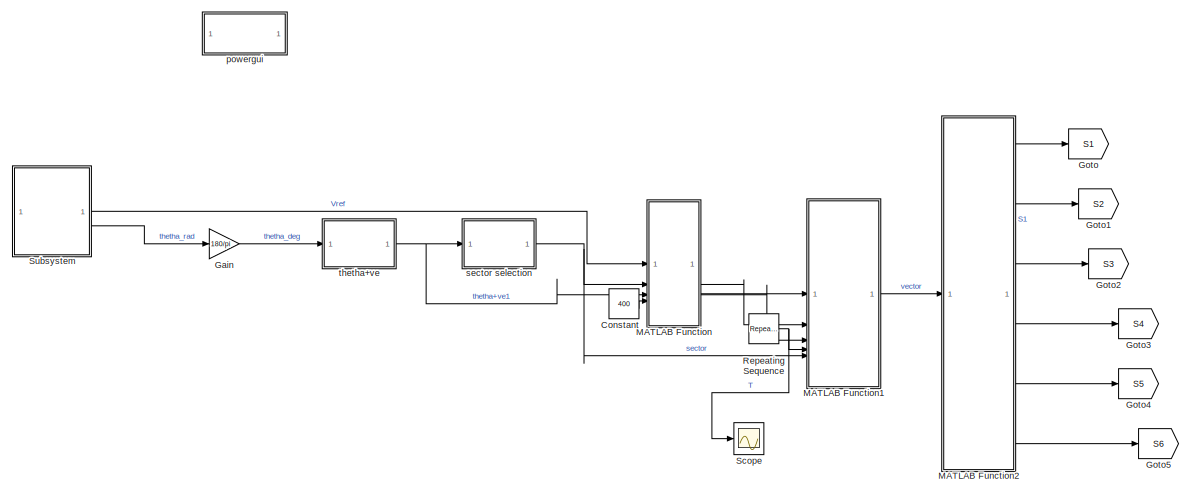
[diagram: root canvas - part 1/2, middle left region]
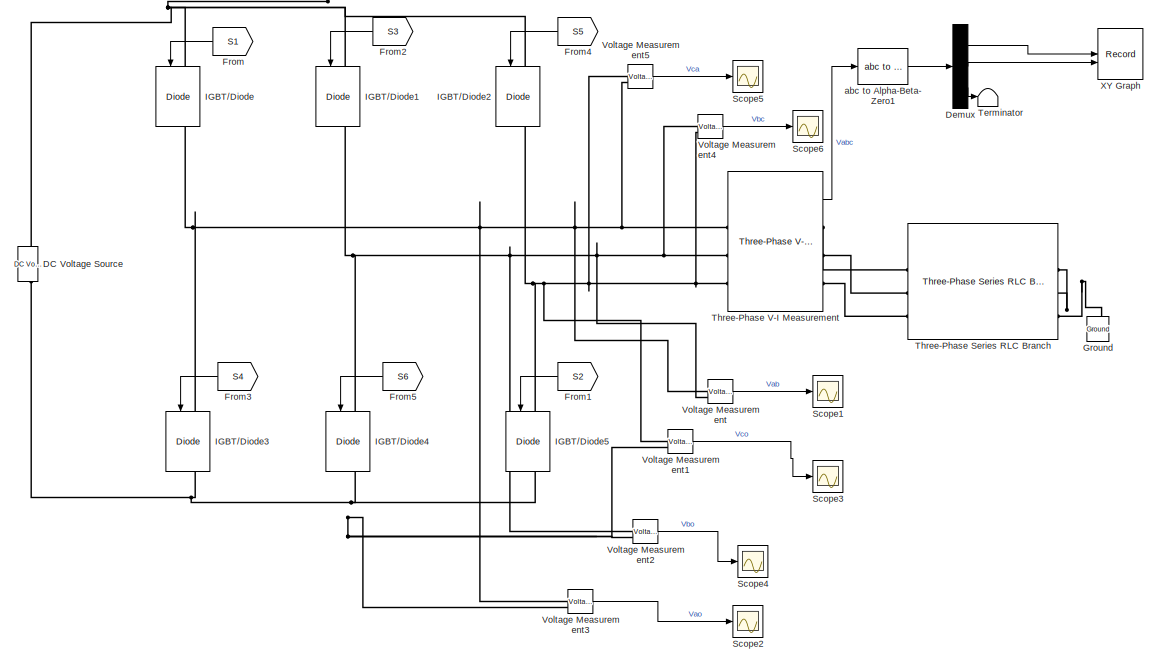
[diagram: root canvas - part 2/2, right side, full height]
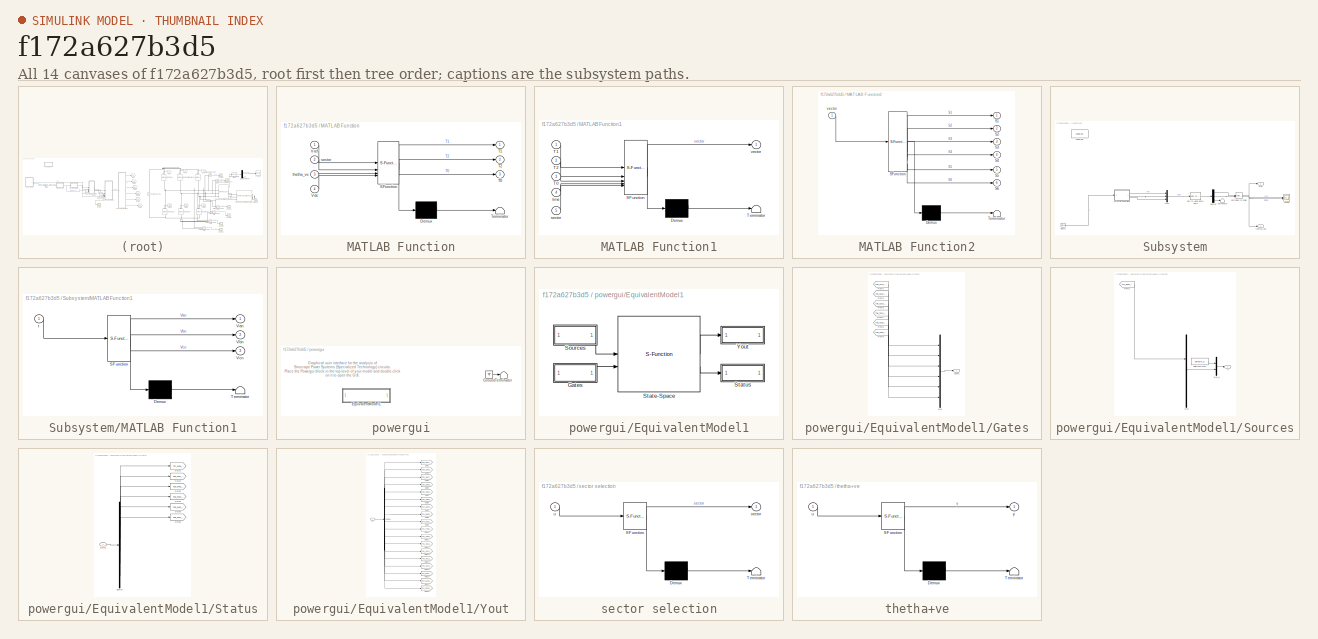
[diagram: thumbnail index - all 14 canvases of the model, root first then tree order]
MODEL slx_f172a627b3d5
KIND model
CONFIG AbsTol = auto
CONFIG EnableMultiTasking = off
CONFIG FixedStep = auto
CONFIG InitFcn = Ts=1/1550;
CONFIG MaxStep = 1e-6
CONFIG MinStep = auto
CONFIG RelTol = 1e-3
CONFIG SampleTimeConstraint = Unconstrained
CONFIG SolverName = VariableStepAuto
CONFIG StartTime = 0.0
CONFIG StopTime = 1
BLOCK [Constant] Constant
  Value = 400
BLOCK [Reference] DC Voltage Source  REF=spsDCVoltageSourceLib/DC Voltage Source
  LibrarySourceBlock = sps_lib/Sources/DC Voltage Source
  SourceBlock = spsDCVoltageSourceLib/DC Voltage Source
  SourceType = DC Voltage Source
BLOCK [Demux] Demux
  Outputs = 3
BLOCK [From] From
  GotoTag = S1
  NameLocation = top
BLOCK [From] From1
  GotoTag = S2
BLOCK [From] From2
  GotoTag = S3
BLOCK [From] From3
  GotoTag = S4
BLOCK [From] From4
  GotoTag = S5
BLOCK [From] From5
  GotoTag = S6
BLOCK [Gain] Gain
  Gain = 180/pi
BLOCK [Goto] Goto
  GotoTag = S1
BLOCK [Goto] Goto1
  GotoTag = S2
BLOCK [Goto] Goto2
  GotoTag = S3
BLOCK [Goto] Goto3
  GotoTag = S4
BLOCK [Goto] Goto4
  GotoTag = S5
BLOCK [Goto] Goto5
  GotoTag = S6
BLOCK [Reference] Ground  REF=spsGroundLib/Ground
  LibrarySourceBlock = sps_lib/Utilities/Ground
  NameLocation = right
  SourceBlock = spsGroundLib/Ground
  SourceType = Ground
BLOCK [Reference] IGBT//Diode  REF=spsIGBTDiodeLib/IGBT//Diode
  LibrarySourceBlock = sps_lib/Power Electronics/IGBT//Diode
  NameLocation = left
  SourceBlock = spsIGBTDiodeLib/IGBT//Diode
  SourceType = IGBT/Diode
BLOCK [Reference] IGBT//Diode1  REF=spsIGBTDiodeLib/IGBT//Diode
  LibrarySourceBlock = sps_lib/Power Electronics/IGBT//Diode
  NameLocation = left
  SourceBlock = spsIGBTDiodeLib/IGBT//Diode
  SourceType = IGBT/Diode
BLOCK [Reference] IGBT//Diode2  REF=spsIGBTDiodeLib/IGBT//Diode
  LibrarySourceBlock = sps_lib/Power Electronics/IGBT//Diode
  NameLocation = left
  SourceBlock = spsIGBTDiodeLib/IGBT//Diode
  SourceType = IGBT/Diode
BLOCK [Reference] IGBT//Diode3  REF=spsIGBTDiodeLib/IGBT//Diode
  LibrarySourceBlock = sps_lib/Power Electronics/IGBT//Diode
  NameLocation = left
  SourceBlock = spsIGBTDiodeLib/IGBT//Diode
  SourceType = IGBT/Diode
BLOCK [Reference] IGBT//Diode4  REF=spsIGBTDiodeLib/IGBT//Diode
  LibrarySourceBlock = sps_lib/Power Electronics/IGBT//Diode
  NameLocation = left
  SourceBlock = spsIGBTDiodeLib/IGBT//Diode
  SourceType = IGBT/Diode
BLOCK [Reference] IGBT//Diode5  REF=spsIGBTDiodeLib/IGBT//Diode
  LibrarySourceBlock = sps_lib/Power Electronics/IGBT//Diode
  NameLocation = left
  SourceBlock = spsIGBTDiodeLib/IGBT//Diode
  SourceType = IGBT/Diode
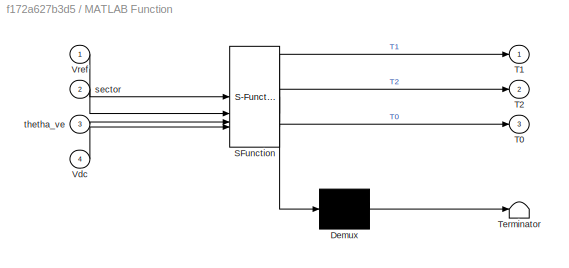
BLOCK [SubSystem] MATLAB Function
  ErrorFcn = Stateflow.Translate.translate
  PermitHierarchicalResolution = ExplicitOnly
  SFBlockType = MATLAB Function
  TreatAsAtomicUnit = on
BLOCK [Demux] MATLAB Function/ Demux 
  Outputs = 1
BLOCK [S-Function] MATLAB Function/ SFunction 
  EnableBusSupport = on
  FunctionName = sf_sfun
  PortCounts = [4 4]
  SFcnIsStateOwnerBlock = off
  SFunctionDeploymentMode = off
  Tag = Stateflow S-Function 4
BLOCK [Terminator] MATLAB Function/ Terminator 
BLOCK [Outport] MATLAB Function/T0
  Port = 3
BLOCK [Outport] MATLAB Function/T1
BLOCK [Outport] MATLAB Function/T2
  Port = 2
BLOCK [Inport] MATLAB Function/Vdc
  Port = 4
BLOCK [Inport] MATLAB Function/Vref
BLOCK [Inport] MATLAB Function/sector
  Port = 2
BLOCK [Inport] MATLAB Function/thetha_ve
  Port = 3
BLOCK [SubSystem] MATLAB Function1
  ErrorFcn = Stateflow.Translate.translate
  PermitHierarchicalResolution = ExplicitOnly
  SFBlockType = MATLAB Function
  TreatAsAtomicUnit = on
BLOCK [Demux] MATLAB Function1/ Demux 
  Outputs = 1
BLOCK [S-Function] MATLAB Function1/ SFunction 
  EnableBusSupport = on
  FunctionName = sf_sfun
  PortCounts = [5 2]
  SFcnIsStateOwnerBlock = off
  SFunctionDeploymentMode = off
  Tag = Stateflow S-Function 5
BLOCK [Terminator] MATLAB Function1/ Terminator 
BLOCK [Inport] MATLAB Function1/T0
  Port = 3
BLOCK [Inport] MATLAB Function1/T1
BLOCK [Inport] MATLAB Function1/T2
  Port = 2
BLOCK [Inport] MATLAB Function1/sector
  Port = 5
BLOCK [Inport] MATLAB Function1/time
  Port = 4
BLOCK [Outport] MATLAB Function1/vector
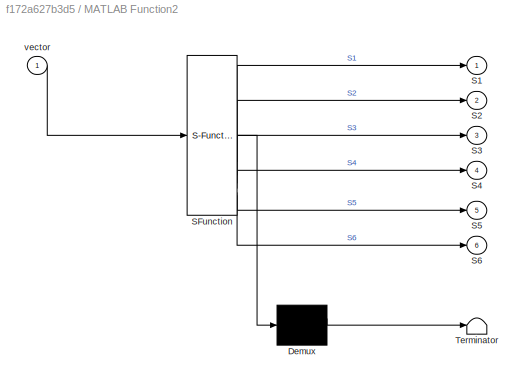
BLOCK [SubSystem] MATLAB Function2
  ErrorFcn = Stateflow.Translate.translate
  PermitHierarchicalResolution = ExplicitOnly
  SFBlockType = MATLAB Function
  TreatAsAtomicUnit = on
BLOCK [Demux] MATLAB Function2/ Demux 
  Outputs = 1
BLOCK [S-Function] MATLAB Function2/ SFunction 
  EnableBusSupport = on
  FunctionName = sf_sfun
  PortCounts = [1 7]
  SFcnIsStateOwnerBlock = off
  SFunctionDeploymentMode = off
  Tag = Stateflow S-Function 6
BLOCK [Terminator] MATLAB Function2/ Terminator 
BLOCK [Outport] MATLAB Function2/S1
BLOCK [Outport] MATLAB Function2/S2
  Port = 2
BLOCK [Outport] MATLAB Function2/S3
  Port = 3
BLOCK [Outport] MATLAB Function2/S4
  Port = 4
BLOCK [Outport] MATLAB Function2/S5
  Port = 5
BLOCK [Outport] MATLAB Function2/S6
  Port = 6
BLOCK [Inport] MATLAB Function2/vector
BLOCK [Reference] Repeating Sequence  REF=simulink/Sources/Repeating
Sequence
  SourceBlock = simulink/Sources/Repeating\nSequence
  SourceType = Repeating table
BLOCK [Scope] Scope
  Floating = off
  NumInputPorts = 1
  ScopeSpecificationString = Simulink.scopes.TimeScopeBlockCfg('CurrentConfiguration', extmgr.ConfigurationSet(extmgr.Configuration('Core','General UI',true),extmgr.Configuration('Core','Source UI',true),extmgr.Configuration('Sources','WiredSimulink',true),extmgr.Configuration('Visuals','Time Domain',true,'SerializedDisplays',{struct('MinYLimReal','-0.00008','MaxYLimReal','0.00073','YLabelReal','','MinYLimMag','0.00000','MaxY...<+1396ch>
BLOCK [Scope] Scope1
  Floating = off
  NumInputPorts = 1
  ScopeSpecificationString = Simulink.scopes.TimeScopeBlockCfg('CurrentConfiguration', extmgr.ConfigurationSet(extmgr.Configuration('Core','General UI',true),extmgr.Configuration('Core','Source UI',true),extmgr.Configuration('Sources','WiredSimulink',true,'DataLoggingVariableName','VS_lineV','DataLogging',true,'DataLoggingSaveFormat','StructureWithTime'),extmgr.Configuration('Visuals','Time Domain',true,'SerializedDisplays',{...<+1531ch>
BLOCK [Scope] Scope2
  Floating = off
  NumInputPorts = 1
  ScopeSpecificationString = Simulink.scopes.TimeScopeBlockCfg('CurrentConfiguration', extmgr.ConfigurationSet(extmgr.Configuration('Core','General UI',true),extmgr.Configuration('Core','Source UI',true),extmgr.Configuration('Sources','WiredSimulink',true,'DataLoggingVariableName','Pole_V','DataLogging',true,'DataLoggingSaveFormat','StructureWithTime'),extmgr.Configuration('Visuals','Time Domain',true,'SerializedDisplays',{st...<+1531ch>
BLOCK [Scope] Scope3
  Floating = off
  NumInputPorts = 1
  ScopeSpecificationString = Simulink.scopes.TimeScopeBlockCfg('CurrentConfiguration', extmgr.ConfigurationSet(extmgr.Configuration('Core','General UI',true),extmgr.Configuration('Core','Source UI',true),extmgr.Configuration('Sources','WiredSimulink',true,'DataLoggingVariableName','ScopeData1','DataLogging',true,'DataLoggingSaveFormat','StructureWithTime'),extmgr.Configuration('Visuals','Time Domain',true,'SerializedDisplays'...<+1533ch>
BLOCK [Scope] Scope4
  Floating = off
  NumInputPorts = 1
  ScopeSpecificationString = Simulink.scopes.TimeScopeBlockCfg('CurrentConfiguration', extmgr.ConfigurationSet(extmgr.Configuration('Core','General UI',true),extmgr.Configuration('Core','Source UI',true),extmgr.Configuration('Sources','WiredSimulink',true,'DataLoggingVariableName','ScopeData2','DataLogging',true,'DataLoggingSaveFormat','StructureWithTime'),extmgr.Configuration('Visuals','Time Domain',true,'SerializedDisplays'...<+1533ch>
BLOCK [Scope] Scope5
  Floating = off
  NumInputPorts = 1
  ScopeSpecificationString = Simulink.scopes.TimeScopeBlockCfg('CurrentConfiguration', extmgr.ConfigurationSet(extmgr.Configuration('Core','General UI',true),extmgr.Configuration('Core','Source UI',true),extmgr.Configuration('Sources','WiredSimulink',true,'DataLoggingVariableName','ScopeData3','DataLogging',true,'DataLoggingSaveFormat','StructureWithTime'),extmgr.Configuration('Visuals','Time Domain',true,'SerializedDisplays'...<+1533ch>
BLOCK [Scope] Scope6
  Floating = off
  NumInputPorts = 1
  ScopeSpecificationString = Simulink.scopes.TimeScopeBlockCfg('CurrentConfiguration', extmgr.ConfigurationSet(extmgr.Configuration('Core','General UI',true),extmgr.Configuration('Core','Source UI',true),extmgr.Configuration('Sources','WiredSimulink',true,'DataLoggingVariableName','ScopeData4','DataLogging',true,'DataLoggingSaveFormat','StructureWithTime'),extmgr.Configuration('Visuals','Time Domain',true,'SerializedDisplays'...<+1533ch>
BLOCK [SubSystem] Subsystem
BLOCK [Reference] Subsystem/Cartesian to Polar  REF=simulink_extras/Transformations/Cartesian to
Polar
  SourceBlock = simulink_extras/Transformations/Cartesian to\nPolar
  SourceType = Cart2Polar
BLOCK [Clock] Subsystem/Clock1
BLOCK [Demux] Subsystem/Demux
  Outputs = 3
BLOCK [SubSystem] Subsystem/MATLAB Function1
  ErrorFcn = Stateflow.Translate.translate
  PermitHierarchicalResolution = ExplicitOnly
  SFBlockType = MATLAB Function
  TreatAsAtomicUnit = on
BLOCK [Demux] Subsystem/MATLAB Function1/ Demux 
  Outputs = 1
BLOCK [S-Function] Subsystem/MATLAB Function1/ SFunction 
  EnableBusSupport = on
  FunctionName = sf_sfun
  PortCounts = [1 4]
  SFcnIsStateOwnerBlock = off
  SFunctionDeploymentMode = off
  Tag = Stateflow S-Function 7
BLOCK [Terminator] Subsystem/MATLAB Function1/ Terminator 
BLOCK [Outport] Subsystem/MATLAB Function1/Van
BLOCK [Outport] Subsystem/MATLAB Function1/Vbn
  Port = 2
BLOCK [Outport] Subsystem/MATLAB Function1/Vcn
  Port = 3
BLOCK [Inport] Subsystem/MATLAB Function1/t
BLOCK [Mux] Subsystem/Mux
  DisplayOption = bar
  Inputs = 3
BLOCK [Scope] Subsystem/Scope
  Floating = off
  NumInputPorts = 2
  ScopeSpecificationString = Simulink.scopes.TimeScopeBlockCfg('CurrentConfiguration', extmgr.ConfigurationSet(extmgr.Configuration('Core','General UI',true),extmgr.Configuration('Core','Source UI',true),extmgr.Configuration('Sources','WiredSimulink',true,'DataLoggingVariableName','ScopeData1'),extmgr.Configuration('Visuals','Time Domain',true,'SerializedDisplays',{struct('MinYLimReal','-16.03429','MaxYLimReal','112.8927','YL...<+1453ch>
BLOCK [Terminator] Subsystem/Terminator
BLOCK [Outport] Subsystem/Vref
BLOCK [Reference] Subsystem/abc to Alpha-Beta-Zero  REF=spsabctoAlphaBetaZeroLib/abc to
Alpha-Beta-Zero
  LibrarySourceBlock = sps_lib/Control/abc to\nAlpha-Beta-Zero
  SourceBlock = spsabctoAlphaBetaZeroLib/abc to\nAlpha-Beta-Zero
  SourceType = abc to Alpha-Beta-Zero Transformation
BLOCK [Reference] Subsystem/powergui  REF=spspowerguiLib/powergui
  LibrarySourceBlock = sps_lib/powergui
  Priority = 1
  SourceBlock = spspowerguiLib/powergui
  SourceType = PSB option menu block
BLOCK [Outport] Subsystem/thetha_rad
  Port = 2
BLOCK [Terminator] Terminator
BLOCK [Reference] Three-Phase Series RLC Branch  REF=spsThreePhaseSeriesRLCBranchLib/Three-Phase
Series RLC Branch
  AttributesFormatString = \n
  LibrarySourceBlock = sps_lib/Passives/Three-Phase\nSeries RLC Branch
  SourceBlock = spsThreePhaseSeriesRLCBranchLib/Three-Phase\nSeries RLC Branch
  SourceType = Three-Phase Series RLC Branch
BLOCK [Reference] Three-Phase V-I Measurement  REF=spsThreePhaseVIMeasurementLib/Three-Phase
V-I Measurement
  LibrarySourceBlock = sps_lib/Sensors and Measurements/Three-Phase\nV-I Measurement
  SourceBlock = spsThreePhaseVIMeasurementLib/Three-Phase\nV-I Measurement
  SourceType = Three-Phase VI Measurement
BLOCK [Reference] Voltage Measurement  REF=spsVoltageMeasurementLib/Voltage Measurement
  LibrarySourceBlock = sps_lib/Sensors and Measurements/Voltage Measurement
  SourceBlock = spsVoltageMeasurementLib/Voltage Measurement
  SourceType = Voltage Measurement
  UserDataPersistent = on
BLOCK [Reference] Voltage Measurement1  REF=spsVoltageMeasurementLib/Voltage Measurement
  LibrarySourceBlock = sps_lib/Sensors and Measurements/Voltage Measurement
  SourceBlock = spsVoltageMeasurementLib/Voltage Measurement
  SourceType = Voltage Measurement
  UserDataPersistent = on
BLOCK [Reference] Voltage Measurement2  REF=spsVoltageMeasurementLib/Voltage Measurement
  LibrarySourceBlock = sps_lib/Sensors and Measurements/Voltage Measurement
  SourceBlock = spsVoltageMeasurementLib/Voltage Measurement
  SourceType = Voltage Measurement
  UserDataPersistent = on
BLOCK [Reference] Voltage Measurement3  REF=spsVoltageMeasurementLib/Voltage Measurement
  LibrarySourceBlock = sps_lib/Sensors and Measurements/Voltage Measurement
  SourceBlock = spsVoltageMeasurementLib/Voltage Measurement
  SourceType = Voltage Measurement
  UserDataPersistent = on
BLOCK [Reference] Voltage Measurement4  REF=spsVoltageMeasurementLib/Voltage Measurement
  LibrarySourceBlock = sps_lib/Sensors and Measurements/Voltage Measurement
  SourceBlock = spsVoltageMeasurementLib/Voltage Measurement
  SourceType = Voltage Measurement
  UserDataPersistent = on
BLOCK [Reference] Voltage Measurement5  REF=spsVoltageMeasurementLib/Voltage Measurement
  LibrarySourceBlock = sps_lib/Sensors and Measurements/Voltage Measurement
  SourceBlock = spsVoltageMeasurementLib/Voltage Measurement
  SourceType = Voltage Measurement
  UserDataPersistent = on
BLOCK [Record] XY Graph
  CompatibilityTag = XY
  FileSettingsInternal = {"entries":[{"content":{"excelSettings":{"content":{},"type":"Streamout.ExcelSettings"}},"type":"Streamout.FileSettingStorage","uuid":""}],"packageUris":["http:\/\/schema.mathworks.com\/mf0\/streamout_blocks\/R2020a"],"version":"1.0"}
  Layout = [1 1]
  SignalsInternal = {"entries":[{"content":{"signals":[{"content":{"blockPath":[],"dimensions":[1],"domain":"","lineColor":"#77ac30","plots":[1],"port":1,"signalID":12102,"signalName":"Demux:1"},"type":"RecordBlkView.Signal","uuid":""},{"content":{"blockPath":[],"dimensions":[1],"domain":"","lineColor":"#139fff","plots":[1],"port":2,"signalID":12105,"signalName":"Demux:2"},"type":"RecordBlkView.Signal","uuid":""}]},"...<+142ch>
  VisualizationBindings = {"xyplotplugin":{"info":[{"series":[{"bindingParametersList":[{"parameter":"X-Axis","signalID":12102,"signalName":"Demux:1"},{"parameter":"Y-Axis","signalID":12105,"signalName":"Demux:2"}],"seriesID":46144}],"subplotID":1}]}}
  st = -1
BLOCK [Reference] abc to Alpha-Beta-Zero1  REF=spsabctoAlphaBetaZeroLib/abc to
Alpha-Beta-Zero
  LibrarySourceBlock = sps_lib/Control/abc to\nAlpha-Beta-Zero
  SourceBlock = spsabctoAlphaBetaZeroLib/abc to\nAlpha-Beta-Zero
  SourceType = abc to Alpha-Beta-Zero Transformation
BLOCK [SubSystem] powergui
  AncestorBlock = sps_lib/powergui
  DialogController = POWERSYS.PowerSysDialog
  InitFcn = powergui( 'InitFcn_Callback' , gcb , 0 , [ ] );
  LibrarySourceBlock = sps_lib/powergui
  OpenFcn = sps_rtmsupport('OpenFcn',gcbh)
  PreSaveFcn = powergui( 'PreSaveFcn_Callback' , gcb , [ ] , [ ] );
  Priority = 1
BLOCK [SubSystem] powergui/EquivalentModel1
BLOCK [SubSystem] powergui/EquivalentModel1/Gates
BLOCK [From] powergui/EquivalentModel1/Gates/From1
  GotoTag = T35_3173_1814712798437
  TagVisibility = global
BLOCK [From] powergui/EquivalentModel1/Gates/From2
  GotoTag = T36_3222_1843384690286
  TagVisibility = global
BLOCK [From] powergui/EquivalentModel1/Gates/From3
  GotoTag = T36_3223_1843302887111
  TagVisibility = global
BLOCK [From] powergui/EquivalentModel1/Gates/From4
  GotoTag = T36_3224_1843309972825
  TagVisibility = global
BLOCK [From] powergui/EquivalentModel1/Gates/From5
  GotoTag = T36_3225_1843405947429
  TagVisibility = global
BLOCK [From] powergui/EquivalentModel1/Gates/From6
  GotoTag = T36_3226_1843590810921
  TagVisibility = global
BLOCK [Mux] powergui/EquivalentModel1/Gates/Mux
  DisplayOption = bar
  Inputs = [1 1 1 1 1 1]
BLOCK [Outport] powergui/EquivalentModel1/Gates/gates
  VectorParamsAs1DForOutWhenUnconnected = off
BLOCK [SubSystem] powergui/EquivalentModel1/Sources
BLOCK [From] powergui/EquivalentModel1/Sources/From1
  GotoTag = T41_3846_2868757830280
  TagVisibility = global
BLOCK [Mux] powergui/EquivalentModel1/Sources/Mux
  DisplayOption = bar
  Inputs = 1
BLOCK [Mux] powergui/EquivalentModel1/Sources/Mux_u
  DisplayOption = bar
  Inputs = [6 1]
BLOCK [Constant] powergui/EquivalentModel1/Sources/SwitchCurrents
  NameLocation = top
  Value = zeros(6,1)
BLOCK [Outport] powergui/EquivalentModel1/Sources/u
  VectorParamsAs1DForOutWhenUnconnected = off
BLOCK [S-Function] powergui/EquivalentModel1/State-Space
  EnableBusSupport = off
  FunctionName = sfun_spssw_discc
  Parameters = S.Ts,S.A, S.B, S.C, S.D, S.x0, S.EnableUseOfTLC,S.SwitchResistance ,S.SwitchType, S.SwitchGateInitialValue, S.OutputsToResetToZero, S.TBEON,S.SaveMatrices,S.BufferSize
  SFcnIsStateOwnerBlock = off
  SFunctionDeploymentMode = off
BLOCK [SubSystem] powergui/EquivalentModel1/Status
BLOCK [Demux] powergui/EquivalentModel1/Status/Demux
  Outputs = [1 1 1 1 1 1]
BLOCK [Goto] powergui/EquivalentModel1/Status/Goto1
  GotoTag = T37_3408_2326625440270
  TagVisibility = global
BLOCK [Goto] powergui/EquivalentModel1/Status/Goto2
  GotoTag = T38_3457_2389215772354
  TagVisibility = global
BLOCK [Goto] powergui/EquivalentModel1/Status/Goto3
  GotoTag = T38_3458_2388722349879
  TagVisibility = global
BLOCK [Goto] powergui/EquivalentModel1/Status/Goto4
  GotoTag = T38_3459_2388313137930
  TagVisibility = global
BLOCK [Goto] powergui/EquivalentModel1/Status/Goto5
  GotoTag = T38_3460_2387988136508
  TagVisibility = global
BLOCK [Goto] powergui/EquivalentModel1/Status/Goto6
  GotoTag = T38_3461_2387747345612
  TagVisibility = global
BLOCK [Inport] powergui/EquivalentModel1/Status/status
BLOCK [SubSystem] powergui/EquivalentModel1/Yout
BLOCK [Demux] powergui/EquivalentModel1/Yout/Demux
  Outputs = [1 1 1 1 1 1 1 1 1 1 1 1 1 1 1 1 1 1]
BLOCK [Goto] powergui/EquivalentModel1/Yout/Goto1
  GotoTag = T38_3507_2416965911586
  TagVisibility = global
BLOCK [Goto] powergui/EquivalentModel1/Yout/Goto10
  GotoTag = T45_4460_3707277077545
  TagVisibility = global
BLOCK [Goto] powergui/EquivalentModel1/Yout/Goto11
  GotoTag = T46_4509_3747870082324
  TagVisibility = global
BLOCK [Goto] powergui/EquivalentModel1/Yout/Goto12
  GotoTag = T46_4510_3746856623541
  TagVisibility = global
BLOCK [Goto] powergui/EquivalentModel1/Yout/Goto13
  GotoTag = T46_4511_3745953606498
  TagVisibility = global
BLOCK [Goto] powergui/EquivalentModel1/Yout/Goto14
  GotoTag = T46_4512_3745161031193
  TagVisibility = global
BLOCK [Goto] powergui/EquivalentModel1/Yout/Goto15
  GotoTag = T46_4513_3744478897628
  TagVisibility = global
BLOCK [Goto] powergui/EquivalentModel1/Yout/Goto16
  GotoTag = T64_5817_6489205900704
  TagVisibility = global
BLOCK [Goto] powergui/EquivalentModel1/Yout/Goto17
  GotoTag = T64_5818_6491573469839
  TagVisibility = global
BLOCK [Goto] powergui/EquivalentModel1/Yout/Goto18
  GotoTag = T64_5819_6494105296786
  TagVisibility = global
BLOCK [Goto] powergui/EquivalentModel1/Yout/Goto2
  GotoTag = T39_3556_2489742173077
  TagVisibility = global
BLOCK [Goto] powergui/EquivalentModel1/Yout/Goto3
  GotoTag = T39_3557_2489114680499
  TagVisibility = global
BLOCK [Goto] powergui/EquivalentModel1/Yout/Goto4
  GotoTag = T39_3558_2488569239204
  TagVisibility = global
BLOCK [Goto] powergui/EquivalentModel1/Yout/Goto5
  GotoTag = T39_3559_2488105849190
  TagVisibility = global
BLOCK [Goto] powergui/EquivalentModel1/Yout/Goto6
  GotoTag = T39_3560_2487724510459
  TagVisibility = global
BLOCK [Goto] powergui/EquivalentModel1/Yout/Goto7
  GotoTag = T64_5829_6537031647133
  TagVisibility = global
BLOCK [Goto] powergui/EquivalentModel1/Yout/Goto8
  GotoTag = T64_5830_6539369051089
  TagVisibility = global
BLOCK [Goto] powergui/EquivalentModel1/Yout/Goto9
  GotoTag = T64_5831_6541870712857
  TagVisibility = global
BLOCK [Inport] powergui/EquivalentModel1/Yout/v,i
BLOCK [Ground] powergui/Ground
BLOCK [Terminator] powergui/Terminator
BLOCK [SubSystem] sector selection
  ErrorFcn = Stateflow.Translate.translate
  PermitHierarchicalResolution = ExplicitOnly
  SFBlockType = MATLAB Function
  TreatAsAtomicUnit = on
BLOCK [Demux] sector selection/ Demux 
  Outputs = 1
BLOCK [S-Function] sector selection/ SFunction 
  EnableBusSupport = on
  FunctionName = sf_sfun
  PortCounts = [1 2]
  SFcnIsStateOwnerBlock = off
  SFunctionDeploymentMode = off
  Tag = Stateflow S-Function 3
BLOCK [Terminator] sector selection/ Terminator 
BLOCK [Outport] sector selection/sector
BLOCK [Inport] sector selection/u
BLOCK [SubSystem] thetha+ve
  ErrorFcn = Stateflow.Translate.translate
  PermitHierarchicalResolution = ExplicitOnly
  SFBlockType = MATLAB Function
  TreatAsAtomicUnit = on
BLOCK [Demux] thetha+ve/ Demux 
  Outputs = 1
BLOCK [S-Function] thetha+ve/ SFunction 
  EnableBusSupport = on
  FunctionName = sf_sfun
  PortCounts = [1 2]
  SFcnIsStateOwnerBlock = off
  SFunctionDeploymentMode = off
  Tag = Stateflow S-Function 1
BLOCK [Terminator] thetha+ve/ Terminator 
BLOCK [Inport] thetha+ve/u
BLOCK [Outport] thetha+ve/y
ANNOTATION powergui: Graphical user interface for the analysis of Simscape Power Systems (Specialized Technology) circuits. Place the Powergui block in the top-level of your model and double-click on it to open the GUI.
LINE Constant:1 -> MATLAB Function:4
LINE Demux:1 -> XY Graph:1
LINE Demux:2 -> XY Graph:2
LINE Demux:3 -> Terminator:1
LINE From1:1 -> IGBT//Diode5:1
LINE From2:1 -> IGBT//Diode1:1
LINE From3:1 -> IGBT//Diode3:1
LINE From4:1 -> IGBT//Diode2:1
LINE From5:1 -> IGBT//Diode4:1
LINE From:1 -> IGBT//Diode:1
LINE Gain:1 -> thetha+ve:1
LINE MATLAB Function1:1 -> MATLAB Function2:1
LINE MATLAB Function2:1 -> Goto:1
LINE MATLAB Function2:2 -> Goto1:1
LINE MATLAB Function2:3 -> Goto2:1
LINE MATLAB Function2:4 -> Goto3:1
LINE MATLAB Function2:5 -> Goto4:1
LINE MATLAB Function2:6 -> Goto5:1
LINE MATLAB Function:1 -> MATLAB Function1:1
LINE MATLAB Function:2 -> MATLAB Function1:2
LINE MATLAB Function:3 -> MATLAB Function1:3
NET Repeating Sequence:1 -> MATLAB Function1:4, Scope:1
NET Subsystem/Cartesian to Polar:1 -> Subsystem/Scope:1, Subsystem/Vref:1
NET Subsystem/Cartesian to Polar:2 -> Subsystem/Scope:2, Subsystem/thetha_rad:1
LINE Subsystem/Clock1:1 -> Subsystem/MATLAB Function1:1
LINE Subsystem/Demux:1 -> Subsystem/Cartesian to Polar:1
LINE Subsystem/Demux:2 -> Subsystem/Cartesian to Polar:2
LINE Subsystem/Demux:3 -> Subsystem/Terminator:1
LINE Subsystem/MATLAB Function1:1 -> Subsystem/Mux:1
LINE Subsystem/MATLAB Function1:2 -> Subsystem/Mux:2
LINE Subsystem/MATLAB Function1:3 -> Subsystem/Mux:3
LINE Subsystem/Mux:1 -> Subsystem/abc to Alpha-Beta-Zero:1
LINE Subsystem/abc to Alpha-Beta-Zero:1 -> Subsystem/Demux:1
LINE Subsystem:1 -> MATLAB Function:1
LINE Subsystem:2 -> Gain:1
LINE Three-Phase V-I Measurement:1 -> abc to Alpha-Beta-Zero1:1
LINE Voltage Measurement1:1 -> Scope3:1
LINE Voltage Measurement2:1 -> Scope4:1
LINE Voltage Measurement3:1 -> Scope2:1
LINE Voltage Measurement4:1 -> Scope6:1
LINE Voltage Measurement5:1 -> Scope5:1
LINE Voltage Measurement:1 -> Scope1:1
LINE abc to Alpha-Beta-Zero1:1 -> Demux:1
NET sector selection:1 -> MATLAB Function1:5, MATLAB Function:2
NET thetha+ve:1 -> MATLAB Function:3, sector selection:1
PNET net1: DC Voltage Source:LConn1 -- IGBT//Diode3:RConn1 -- IGBT//Diode4:RConn1 -- IGBT//Diode5:RConn1 -- Voltage Measurement1:LConn2 -- Voltage Measurement2:LConn2 -- Voltage Measurement3:LConn2
PNET net2: DC Voltage Source:RConn1 -- IGBT//Diode1:LConn1 -- IGBT//Diode2:LConn1 -- IGBT//Diode:LConn1
PNET net3: Ground:LConn1 -- Three-Phase Series RLC Branch:RConn1 -- Three-Phase Series RLC Branch:RConn2 -- Three-Phase Series RLC Branch:RConn3
PNET net4: IGBT//Diode1:RConn1 -- IGBT//Diode4:LConn1 -- Three-Phase V-I Measurement:LConn2 -- Voltage Measurement2:LConn1 -- Voltage Measurement4:LConn1 -- Voltage Measurement:LConn2
PNET net5: IGBT//Diode2:RConn1 -- IGBT//Diode5:LConn1 -- Three-Phase V-I Measurement:LConn3 -- Voltage Measurement1:LConn1 -- Voltage Measurement4:LConn2 -- Voltage Measurement5:LConn1
PNET net6: IGBT//Diode3:LConn1 -- IGBT//Diode:RConn1 -- Three-Phase V-I Measurement:LConn1 -- Voltage Measurement3:LConn1 -- Voltage Measurement5:LConn2 -- Voltage Measurement:LConn1
PLINE Three-Phase Series RLC Branch:LConn1 -- Three-Phase V-I Measurement:RConn1
PLINE Three-Phase Series RLC Branch:LConn2 -- Three-Phase V-I Measurement:RConn2
PLINE Three-Phase Series RLC Branch:LConn3 -- Three-Phase V-I Measurement:RConn3
note: NET lines group one-source signal fan-out (src -> all destinations, sorted); 1:1 wires keep LINE; PNET lines group multi-terminal physical nets as a canonical sorted terminal list (undirected conserving connections); 2-terminal nets keep the pairwise PLINE form
CHART thetha+ve states=1 transitions=1
  STATE_LABEL 'eML_blk_kernel()'
  STATE_LABEL 'SCRIPT:\nfunction y = fcn(u)\nangle=u(1);\nif (angle>=0)\n    y=angle;\nelse\n    y=angle+360;\nend\n\n\n'
CHART sector selection states=1 transitions=1
  STATE_LABEL 'eML_blk_kernel()'
  STATE_LABEL 'SCRIPT:\nfunction sector= fcn(u)\nangle=u(1);\nif (angle>=0)&&(angle<60)\n    sector=1;\nelseif (angle>=60)&&(angle<120)\n    sector=2;\nelseif (angle>=120)&&(angle<180)\n    sector=3;\nelseif (angle>=180)&&(angle<240)\n    sector=4;\nelseif (angle>=240)&&(angle<300)\n    sector=5;\nelse\n    sector=6;\nend\n\n'
CHART MATLAB Function states=1 transitions=1
  STATE_LABEL 'eML_blk_kernel()'
  STATE_LABEL 'SCRIPT:\nfunction [T1,T2,T0] = fcn(Vref,sector,thetha_ve,Vdc)\nMa=sqrt(3)*Vref/Vdc;\nthetha=thetha_ve*pi/180;\nK=sector;\nTs=1/1550;\nTHETHA1=thetha-(K-1)*pi/3;\nT1=Ma*Ts*sin((pi/3)-THETHA1);\nT2=Ma*Ts*sin(THETHA1);\nT0=Ts-T1-T2;\nend\n'
CHART MATLAB Function1 states=1 transitions=1
  STATE_LABEL 'eML_blk_kernel()'
  STATE_LABEL 'SCRIPT:\nfunction vector  = fcn(T1,T2,T0,time,sector)\ntt1=T0/4;\ntt2=tt1+T2/2;\ntt3=tt2+T1/2;\ntt4=tt3+T0/2;\ntt5=tt4+T1/2;\ntt6=tt5+T2/2;\n\nt1=T0/4;\nt2=t1+T1/2;\nt3=t2+T2/2;\nt4=t3+T0/2;\nt5=t4+T2/2;\nt6=t5+T1/2;\nif sector==1\n    if (time<=tt1)&&(time>0)\n        vector=7;\n    elseif(time<=tt2)&&(time>tt1)\n        vector=2;\n    elseif (time<=tt3)&&(time>tt2)\n        vector=1;\n    elseif (time<=tt4)&&(time>tt...<+1927ch>'
CHART MATLAB Function2 states=1 transitions=1
  STATE_LABEL 'eML_blk_kernel()'
  STATE_LABEL 'SCRIPT:\nfunction [S1,S2,S3,S4, S5,S6]= fcn(vector)\nif vector==8\n    S1=0;\n    S2=1;\n   S3=0;\n   S4=1;\n   S5=0;\n   S6=1;\nelseif vector==7\n    S1=1;\n    S2=0;\n    S3=1;\n    S4=0;\n    S5=1;\n    S6=0;\nelseif vector==6\n    S1=1;\n    S2=0;\n    S3=0;\n    S4=0;\n    S5=1;\n    S6=1;\nelseif vector==5\n    S1=0;\n    S2=0;\n    S3=0;\n    S4=1;\n    S5=1;\n    S6=1;\nelseif vector==4\n    S1=0;\n    S2=0;\n    S3=1;\n  ...<+254ch>'
CHART Subsystem/MATLAB Function1 states=1 transitions=1
  STATE_LABEL 'eML_blk_kernel()'
  STATE_LABEL 'SCRIPT:\nfunction [Van,Vbn,Vcn]= fcn(t)\n\n\nw=2*pi*50;\nthetha1=2*pi/3;\nthetha2=4*pi/3;\nVan=400/sqrt(3)*sin(w*t);\nVbn=400/sqrt(3)*sin(w*t-thetha1);\nVcn=400/sqrt(3)*sin(w*t-thetha2);\nend'
CHART  states=0 transitions=0
CHART  states=0 transitions=0
CHART  states=0 transitions=0
CHART  states=0 transitions=0
CHART  states=0 transitions=0
CHART  states=0 transitions=0
